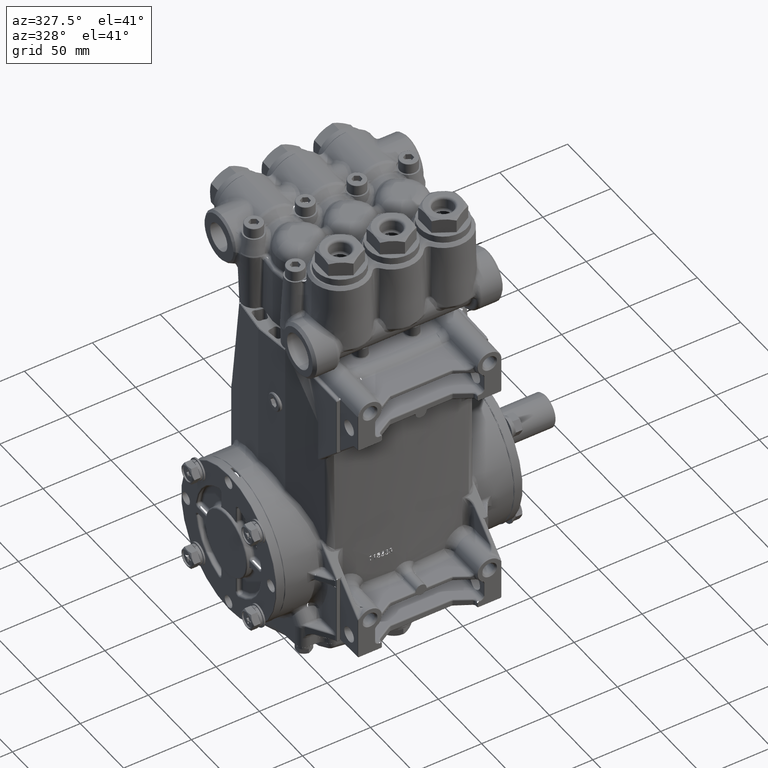
[diagram: clean part render]
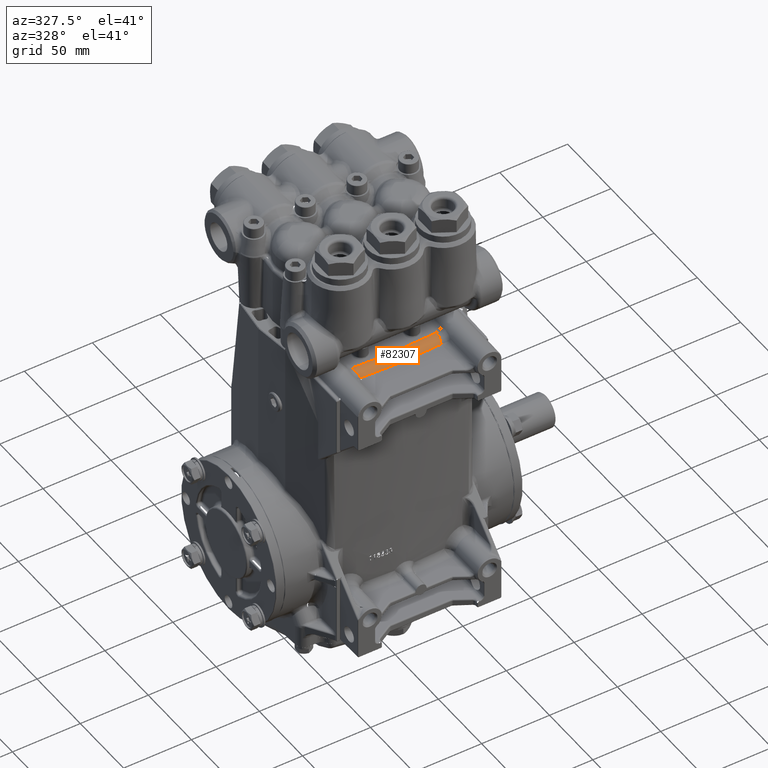
[diagram: same view with one face highlighted and labeled with its STEP entity id]
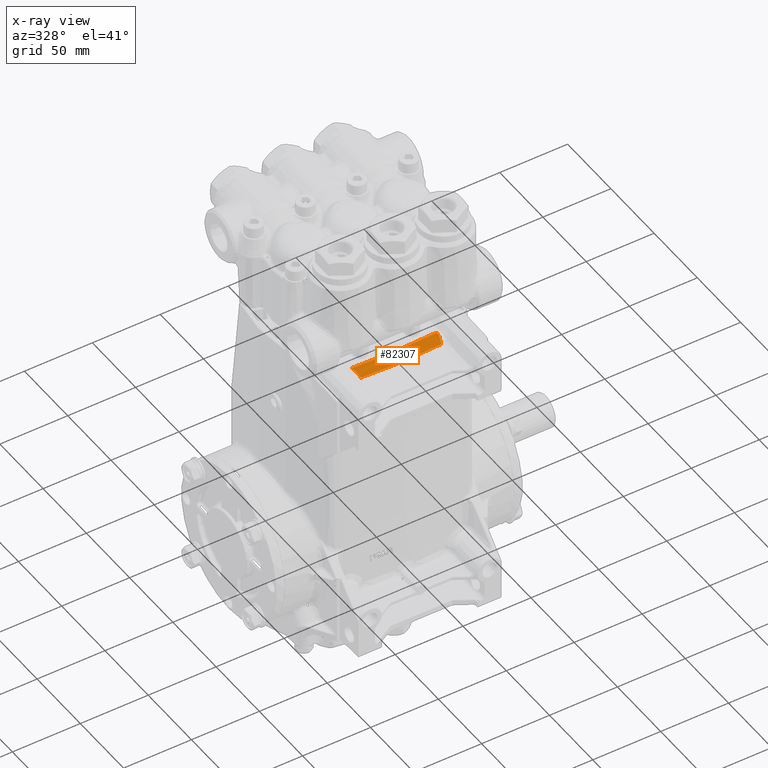
[diagram: x-ray of the same camera — body ghosted, the highlighted face saturated]
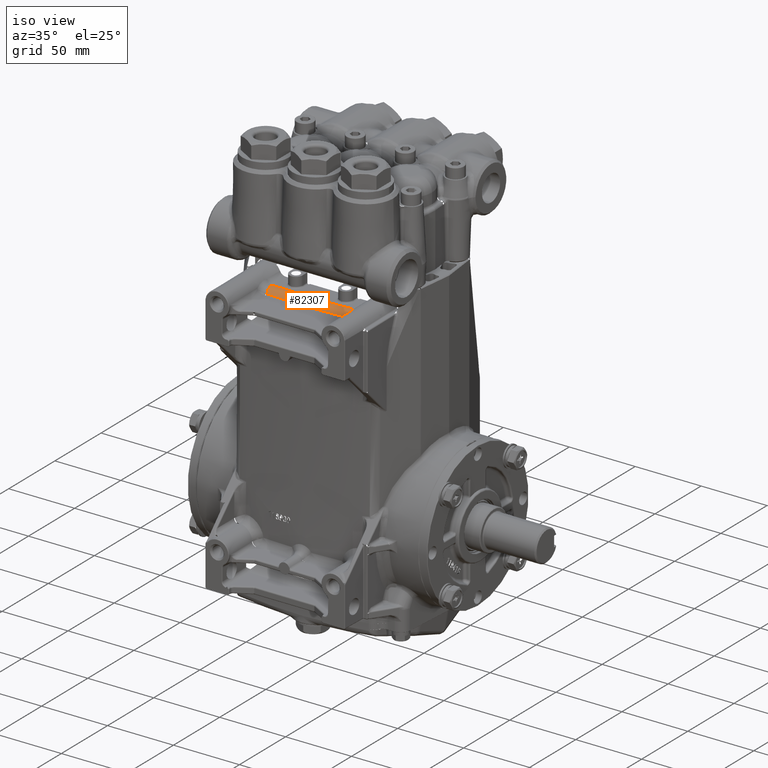
[diagram: same view with one face highlighted and labeled with its STEP entity id]
A machine part, auxiliary view. The second image highlights one B-rep face of the part: STEP entity #82307.
The next image is the same camera in x-ray: the body ghosted, the highlighted face saturated — about 0% of this face is hidden behind the body in this view.
A second angle (iso view) of the same face is appended — the face is thin or edge-on in the first view.
In plain terms, the highlighted toroidal blend (fillet) surface has major radius 390.263 mm and minor (blend) radius 8 mm.
Its self-contained STEP definition (entity closure, byte-faithful):
#863 = CARTESIAN_POINT ( 'NONE',  ( 1.216904335083869748, -1.908252946224999524, 5.934251050949030493 ) ) ;
#4983 = VERTEX_POINT ( 'NONE', #104754 ) ;
#7480 = CARTESIAN_POINT ( 'NONE',  ( -1.165097151441371714, -2.232201911865667743, 5.836387560405494668 ) ) ;
#9433 = FACE_OUTER_BOUND ( 'NONE', #128820, .T. ) ;
#9949 = CARTESIAN_POINT ( 'NONE',  ( -1.217691984920964199, -1.908199455692020763, 5.934253560668479643 ) ) ;
#10817 = DIRECTION ( 'NONE',  ( -1.000000000000000000, 0.000000000000000000, 0.000000000000000000 ) ) ;
#11048 = CARTESIAN_POINT ( 'NONE',  ( -0.3899293724603212219, -2.290967721657712008, 5.835561365548026735 ) ) ;
#13758 = CARTESIAN_POINT ( 'NONE',  ( 0.4063142212288701205, -1.953844391425115345, 5.933455249312890700 ) ) ;
#16257 = ORIENTED_EDGE ( 'NONE', *, *, #88892, .F. ) ;
#17093 = CARTESIAN_POINT ( 'NONE',  ( -1.217429318418609130, -1.908215444065127997, 5.934252230427118135 ) ) ;
#17292 = CARTESIAN_POINT ( 'NONE',  ( -1.221974138423549183, -1.937373521815745736, 5.942097098961489188 ) ) ;
#17457 = VERTEX_POINT ( 'NONE', #863 ) ;
#18680 = CARTESIAN_POINT ( 'NONE',  ( -1.205108444697416736, -2.099554034145768799, 5.925905650144610348 ) ) ;
#22712 = DIRECTION ( 'NONE',  ( -0.000000000000000000, -0.000000000000000000, -1.000000000000000000 ) ) ;
#22956 = CARTESIAN_POINT ( 'NONE',  ( -1.165097151441371714, -2.232201911865667743, 5.836387560405494668 ) ) ;
#24507 = CARTESIAN_POINT ( 'NONE',  ( 1.165097151441371714, -2.232201911865667743, 5.836387560405494668 ) ) ;
#26374 = CARTESIAN_POINT ( 'NONE',  ( -0.4060446753913620199, -1.953851131533457242, 5.933455131663864179 ) ) ;
#27015 = CARTESIAN_POINT ( 'NONE',  ( 1.221050550213936381, -2.012775430383075825, 5.944375302707012310 ) ) ;
#27631 = CARTESIAN_POINT ( 'NONE',  ( 1.165097151441371714, -2.232201911865667743, 5.836387560405494668 ) ) ;
#32088 = CARTESIAN_POINT ( 'NONE',  ( -1.216904335083869748, -1.908252946224999524, 5.934251050949030493 ) ) ;
#32669 = VERTEX_POINT ( 'NONE', #104936 ) ;
#35429 = CARTESIAN_POINT ( 'NONE',  ( 1.214797500268564256, -2.057036835244668183, 5.938017673214893044 ) ) ;
#39007 = CARTESIAN_POINT ( 'NONE',  ( -1.193383109977367296, -2.139816213048841842, 5.908376611352507801 ) ) ;
#39518 = CARTESIAN_POINT ( 'NONE',  ( 1.181294211147638995, -2.177175757343493334, 5.885803438702796875 ) ) ;
#40635 = VERTEX_POINT ( 'NONE', #32088 ) ;
#43097 = CARTESIAN_POINT ( 'NONE',  ( 1.217429318418609130, -1.908215444065127997, 5.934252230427118135 ) ) ;
#45928 = CARTESIAN_POINT ( 'NONE',  ( 1.217691984920964199, -1.908199455692020763, 5.934253560668479643 ) ) ;
#45984 = CARTESIAN_POINT ( 'NONE',  ( -0.8121617355370303049, -1.938589513451975943, 5.933721524198386277 ) ) ;
#47432 = EDGE_CURVE ( 'NONE', #40635, #135411, #129983, .T. ) ;
#50217 = CARTESIAN_POINT ( 'NONE',  ( -1.211866934396037321, -2.071380623194570614, 5.934609888707560899 ) ) ;
#52166 = CARTESIAN_POINT ( 'NONE',  ( 0.000000000000000000, 13.32677165354330917, 5.629921259842520342 ) ) ;
#53920 = EDGE_CURVE ( 'NONE', #32669, #137404, #118650, .T. ) ;
#57119 = CARTESIAN_POINT ( 'NONE',  ( 1.205108444697416736, -2.099554034145768799, 5.925905650144610348 ) ) ;
#59128 = CARTESIAN_POINT ( 'NONE',  ( 1.193383109977367296, -2.139816213048841842, 5.908376611352507801 ) ) ;
#59820 = CARTESIAN_POINT ( 'NONE',  ( -1.217691984920964199, -1.908199455692020763, 5.934253560668479643 ) ) ;
#60016 = CARTESIAN_POINT ( 'NONE',  ( -1.223626186242902980, -1.967156711198904562, 5.945567545082587557 ) ) ;
#60722 = CARTESIAN_POINT ( 'NONE',  ( -1.189290611670189568, -2.152558809865322331, 5.901436285233053525 ) ) ;
#64988 = CARTESIAN_POINT ( 'NONE',  ( 1.165097151441371714, -2.232201911865667743, 5.836387560405494668 ) ) ;
#65983 = B_SPLINE_CURVE_WITH_KNOTS ( 'NONE', 3,
 ( #45928, #78148, #88656, #27015, #69731, #35429, #120906, #57119, #103949, #59128, #134124, #39518, #122222, #103268, #91349, #27631 ),
 .UNSPECIFIED., .F., .F.,
 ( 4, 2, 2, 2, 2, 2, 2, 4 ),
 ( 1.439068570770259769E-07, 0.002288276117955085915, 0.003432342223504101630, 0.004576408329053117778, 0.005720474434602133493, 0.006864540540151149207, 0.008008606645700166657, 0.009152672751249183239 ),
 .UNSPECIFIED. ) ;
#66845 = CARTESIAN_POINT ( 'NONE',  ( 1.216904335083869748, -1.908252946224999524, 5.934251050949030493 ) ) ;
#68600 = EDGE_CURVE ( 'NONE', #17457, #4983, #108854, .T. ) ;
#69731 = CARTESIAN_POINT ( 'NONE',  ( 1.219388053584685050, -2.027763375255433598, 5.942899321816348390 ) ) ;
#71218 = CARTESIAN_POINT ( 'NONE',  ( -1.177374773041522715, -2.189094144892022697, 5.877063202202147174 ) ) ;
#75190 = B_SPLINE_CURVE_WITH_KNOTS ( 'NONE', 3,
 ( #113274, #17292, #60016, #92228, #134984, #90133, #50217, #18680, #113973, #39007, #60722, #124491, #71218, #132909, #103451, #7480 ),
 .UNSPECIFIED., .F., .F.,
 ( 4, 2, 2, 2, 2, 2, 2, 4 ),
 ( 1.439068570770259769E-07, 0.002288276117955085915, 0.003432342223504101630, 0.004576408329053117778, 0.005720474434602133493, 0.006864540540151149207, 0.008008606645700166657, 0.009152672751249183239 ),
 .UNSPECIFIED. ) ;
#76172 = CARTESIAN_POINT ( 'NONE',  ( 0.3898621626276780883, -2.290972816864643491, 5.835561293913962722 ) ) ;
#78148 = CARTESIAN_POINT ( 'NONE',  ( 1.221974138423549183, -1.937373521815745736, 5.942097098961489188 ) ) ;
#82307 = ADVANCED_FACE ( 'NONE', ( #9433 ), #113155, .T. ) ;
#85814 = CARTESIAN_POINT ( 'NONE',  ( 1.217691984920964199, -1.908199455692020763, 5.934253560668479643 ) ) ;
#88521 = AXIS2_PLACEMENT_3D ( 'NONE', #52166, #22712, #10817 ) ;
#88656 = CARTESIAN_POINT ( 'NONE',  ( 1.223626186242902980, -1.967156711198904562, 5.945567545082587557 ) ) ;
#88892 = EDGE_CURVE ( 'NONE', #40635, #17457, #97872, .T. ) ;
#90133 = CARTESIAN_POINT ( 'NONE',  ( -1.214797500268564256, -2.057036835244668183, 5.938017673214893044 ) ) ;
#91349 = CARTESIAN_POINT ( 'NONE',  ( 1.167387699245092225, -2.222209805194755194, 5.847669250653879658 ) ) ;
#92228 = CARTESIAN_POINT ( 'NONE',  ( -1.221050550213936381, -2.012775430383075825, 5.944375302707012310 ) ) ;
#97872 = B_SPLINE_CURVE_WITH_KNOTS ( 'NONE', 3,
 ( #133563, #45984, #26374, #13758, #98554, #109736 ),
 .UNSPECIFIED., .F., .F.,
 ( 4, 2, 4 ),
 ( 0.06454228757455827969, 0.09547026393117982734, 0.1263982402878013611 ),
 .UNSPECIFIED. ) ;
#98554 = CARTESIAN_POINT ( 'NONE',  ( 0.8119026323990516936, -1.938608933942362000, 5.933721185212462501 ) ) ;
#100890 = ORIENTED_EDGE ( 'NONE', *, *, #111460, .T. ) ;
#103180 = ORIENTED_EDGE ( 'NONE', *, *, #47432, .T. ) ;
#103268 = CARTESIAN_POINT ( 'NONE',  ( 1.170433541391006749, -2.211581504798485032, 5.858009219033668558 ) ) ;
#103451 = CARTESIAN_POINT ( 'NONE',  ( -1.167387699245092225, -2.222209805194755194, 5.847669250653879658 ) ) ;
#103949 = CARTESIAN_POINT ( 'NONE',  ( 1.201279338178513623, -2.113365603950477567, 5.920597281959862457 ) ) ;
#104754 = CARTESIAN_POINT ( 'NONE',  ( 1.217691984920964199, -1.908199455692020763, 5.934253560668479643 ) ) ;
#104936 = CARTESIAN_POINT ( 'NONE',  ( -1.165097151441371714, -2.232201911865667743, 5.836387560405494668 ) ) ;
#108854 = B_SPLINE_CURVE_WITH_KNOTS ( 'NONE', 3,
 ( #66845, #128587, #43097, #85814 ),
 .UNSPECIFIED., .F., .F.,
 ( 4, 4 ),
 ( 0.000000000000000000, 2.005248846539820951E-05 ),
 .UNSPECIFIED. ) ;
#109736 = CARTESIAN_POINT ( 'NONE',  ( 1.216904335083869748, -1.908252946224999524, 5.934251050949030493 ) ) ;
#111460 = EDGE_CURVE ( 'NONE', #135411, #32669, #75190, .T. ) ;
#113064 = CARTESIAN_POINT ( 'NONE',  ( -1.217166754783326255, -1.908233277149239182, 5.934251394274024705 ) ) ;
#113155 = TOROIDAL_SURFACE ( 'NONE', #88521, 15.36468695600603418, 0.3149606299212598381 ) ;
#113274 = CARTESIAN_POINT ( 'NONE',  ( -1.217691984920964199, -1.908199455692020763, 5.934253560668479643 ) ) ;
#113973 = CARTESIAN_POINT ( 'NONE',  ( -1.201279338178513623, -2.113365603950477567, 5.920597281959862457 ) ) ;
#118650 = B_SPLINE_CURVE_WITH_KNOTS ( 'NONE', 3,
 ( #22956, #11048, #76172, #64988 ),
 .UNSPECIFIED., .F., .F.,
 ( 4, 4 ),
 ( 0.005355478799954893447, 0.06458868343273777013 ),
 .UNSPECIFIED. ) ;
#120906 = CARTESIAN_POINT ( 'NONE',  ( 1.211866934396037321, -2.071380623194570614, 5.934609888707560899 ) ) ;
#122222 = CARTESIAN_POINT ( 'NONE',  ( 1.177374773041522715, -2.189094144892022697, 5.877063202202147174 ) ) ;
#124288 = CARTESIAN_POINT ( 'NONE',  ( -1.216904335083869748, -1.908252946224999524, 5.934251050949030493 ) ) ;
#124491 = CARTESIAN_POINT ( 'NONE',  ( -1.181294211147638995, -2.177175757343493334, 5.885803438702796875 ) ) ;
#126720 = ORIENTED_EDGE ( 'NONE', *, *, #126978, .F. ) ;
#126978 = EDGE_CURVE ( 'NONE', #4983, #137404, #65983, .T. ) ;
#128587 = CARTESIAN_POINT ( 'NONE',  ( 1.217166754783326255, -1.908233277149239182, 5.934251394274024705 ) ) ;
#128820 = EDGE_LOOP ( 'NONE', ( #103180, #100890, #134209, #126720, #138582, #16257 ) ) ;
#129983 = B_SPLINE_CURVE_WITH_KNOTS ( 'NONE', 3,
 ( #124288, #113064, #17093, #59820 ),
 .UNSPECIFIED., .F., .F.,
 ( 4, 4 ),
 ( 0.000000000000000000, 2.005248846539820951E-05 ),
 .UNSPECIFIED. ) ;
#132909 = CARTESIAN_POINT ( 'NONE',  ( -1.170433541391006749, -2.211581504798485032, 5.858009219033668558 ) ) ;
#133563 = CARTESIAN_POINT ( 'NONE',  ( -1.216904335083869748, -1.908252946224999524, 5.934251050949030493 ) ) ;
#134124 = CARTESIAN_POINT ( 'NONE',  ( 1.189290611670189568, -2.152558809865322331, 5.901436285233053525 ) ) ;
#134209 = ORIENTED_EDGE ( 'NONE', *, *, #53920, .T. ) ;
#134984 = CARTESIAN_POINT ( 'NONE',  ( -1.219388053584685050, -2.027763375255433598, 5.942899321816348390 ) ) ;
#135411 = VERTEX_POINT ( 'NONE', #9949 ) ;
#137404 = VERTEX_POINT ( 'NONE', #24507 ) ;
#138582 = ORIENTED_EDGE ( 'NONE', *, *, #68600, .F. ) ;